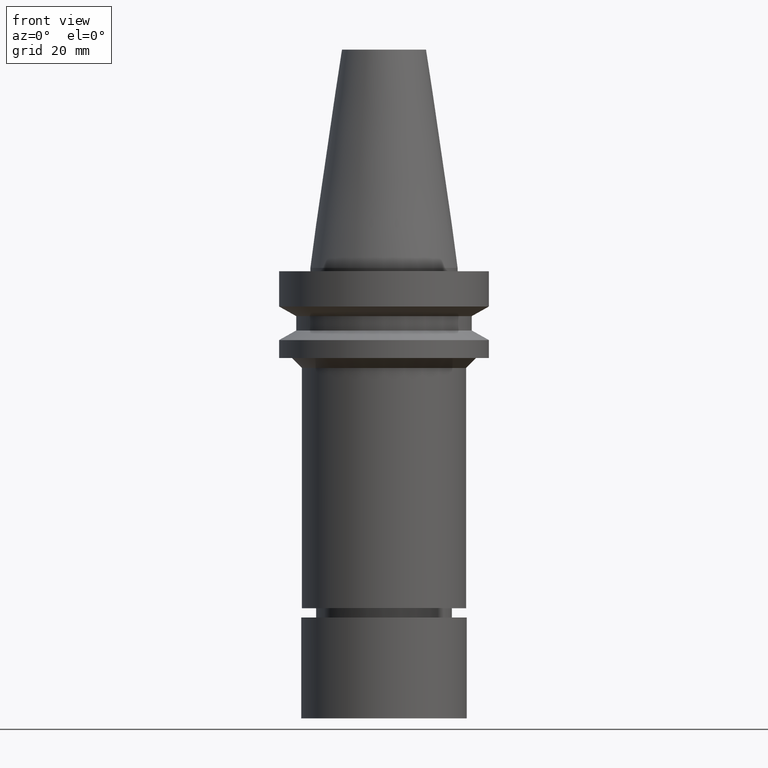
[diagram: clean part render]
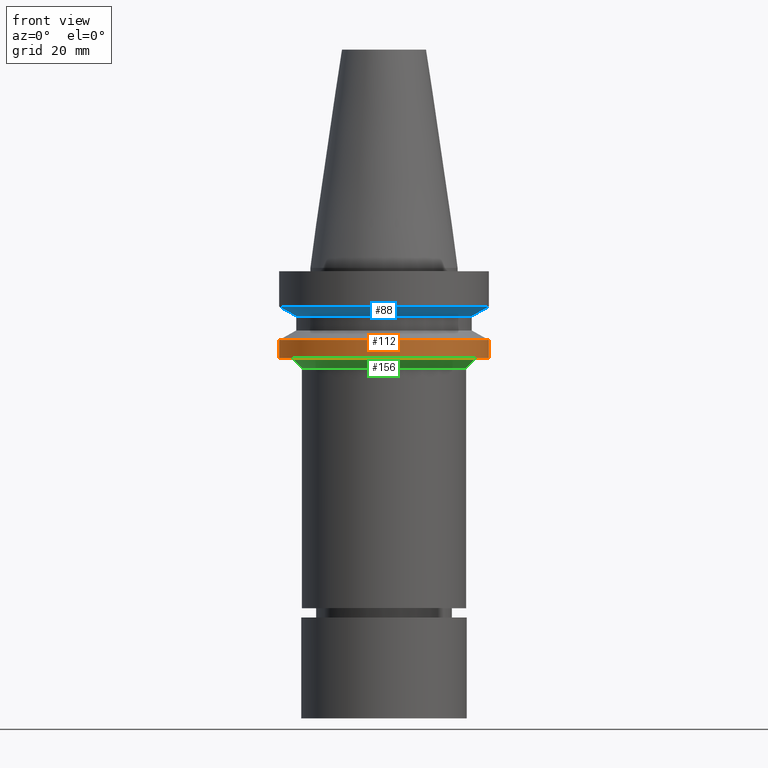
[diagram: same view with three faces highlighted in distinct colors, each labeled with its STEP entity id]
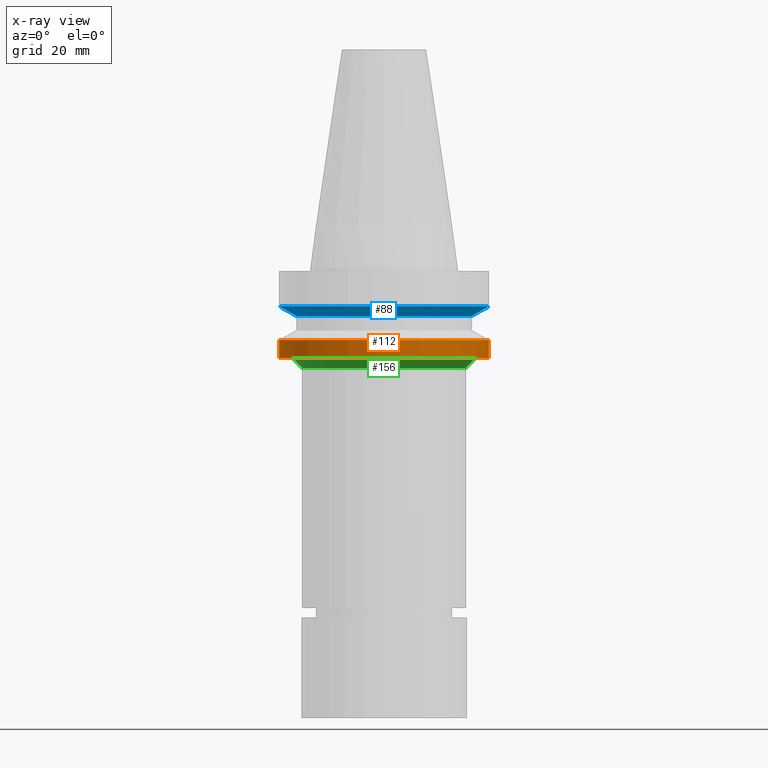
[diagram: x-ray of the same camera — body ghosted, the three highlighted faces saturated]
A machine part, front view with three faces highlighted in distinct colors.
The next image is the same camera in x-ray (body ghosted, the three faces saturated) — at least one of them is partly hidden behind the body in this view.
Their STEP definitions:

[orange] entity #112 — the highlighted cylindrical surface (bore or boss wall) has radius 31.5 mm, axis along (0, -0, -1).
#90=EDGE_CURVE('Unnamed[1]',#221,#221,#222,.T.);
#112=ADVANCED_FACE('Unnamed[1]',(#255,#256),#257,.T.);
#124=EDGE_CURVE('Unnamed[1]',#274,#274,#275,.T.);
#221=VERTEX_POINT('',#400);
#222=CIRCLE('',#401,31.5000000000006);
#255=FACE_BOUND('',#443,.T.);
#256=FACE_BOUND('',#444,.T.);
#257=CYLINDRICAL_SURFACE('',#445,31.5000000000005);
#274=VERTEX_POINT('',#467);
#275=CIRCLE('',#468,31.5000000000003);
#400=CARTESIAN_POINT('',(1.32473071268174E-015,31.5000000000007,-21.6344943473346));
#401=AXIS2_PLACEMENT_3D('',#599,#600,#601);
#443=EDGE_LOOP('',(#636));
#444=EDGE_LOOP('',(#637));
#445=AXIS2_PLACEMENT_3D('',#638,#639,#640);
#467=CARTESIAN_POINT('',(1.65328282719222E-015,31.5000000000004,-27.0001575694036));
#468=AXIS2_PLACEMENT_3D('',#658,#659,#660);
#599=CARTESIAN_POINT('',(1.32473071268174E-015,7.6377663973404E-014,-21.6344943473346));
#600=DIRECTION('',(6.12323399573677E-017,-8.9814939714193E-018,-1.0));
#601=DIRECTION('',(-4.27719483858603E-033,1.0,-8.9814939714193E-018));
#636=ORIENTED_EDGE('',*,*,#124,.F.);
#637=ORIENTED_EDGE('',*,*,#90,.T.);
#638=CARTESIAN_POINT('',(1.48900676993698E-015,7.63535681374632E-014,-24.3173259583691));
#639=DIRECTION('',(6.12323399573677E-017,-8.98149397141929E-018,-1.0));
#640=DIRECTION('',(-4.27719483858603E-033,1.0,-8.98149397141929E-018));
#658=CARTESIAN_POINT('',(1.65328282719222E-015,7.63294723015223E-014,-27.0001575694036));
#659=DIRECTION('',(6.12323399573677E-017,-8.98149397141932E-018,-1.0));
#660=DIRECTION('',(-4.27719483858603E-033,1.0,-8.98149397141932E-018));

[blue] entity #88 — the highlighted conical surface has half-angle 60 deg.
#88=ADVANCED_FACE('Unnamed[1]',(#217,#218),#219,.T.);
#151=EDGE_CURVE('Unnamed[1]',#316,#316,#317,.T.);
#153=EDGE_CURVE('Unnamed[1]',#319,#319,#320,.T.);
#217=FACE_BOUND('',#395,.T.);
#218=FACE_BOUND('',#396,.T.);
#219=CONICAL_SURFACE('',#397,28.9999999999998,1.04719755119657);
#316=VERTEX_POINT('',#520);
#317=CIRCLE('',#521,31.5000000000003);
#319=VERTEX_POINT('',#524);
#320=CIRCLE('',#525,26.4999999999994);
#395=EDGE_LOOP('',(#594));
#396=EDGE_LOOP('',(#595));
#397=AXIS2_PLACEMENT_3D('',#596,#597,#598);
#520=CARTESIAN_POINT('',(7.08182973902924E-016,31.5000000000004,-11.5655056526664));
#521=AXIS2_PLACEMENT_3D('',#705,#706,#707);
#524=CARTESIAN_POINT('',(8.8494551369045E-016,26.4999999999995,-14.4522569986152));
#525=AXIS2_PLACEMENT_3D('',#708,#709,#710);
#594=ORIENTED_EDGE('',*,*,#153,.F.);
#595=ORIENTED_EDGE('',*,*,#151,.T.);
#596=CARTESIAN_POINT('',(7.96564243796687E-016,7.64551348647582E-014,-13.0088813256408));
#597=DIRECTION('',(-6.12323399573677E-017,8.98149397141931E-018,1.0));
#598=DIRECTION('',(-4.27719483858603E-033,1.0,-8.9814939714193E-018));
#705=CARTESIAN_POINT('',(7.08182973902924E-016,7.64680985346635E-014,-11.5655056526664));
#706=DIRECTION('',(6.12323399573677E-017,-8.98149397141932E-018,-1.0));
#707=DIRECTION('',(-4.27719483858603E-033,1.0,-8.98149397141932E-018));
#708=CARTESIAN_POINT('',(8.8494551369045E-016,7.64421711948529E-014,-14.4522569986152));
#709=DIRECTION('',(6.12323399573677E-017,-8.98149397141931E-018,-1.0));
#710=DIRECTION('',(-4.27719483858603E-033,1.0,-8.98149397141931E-018));

[green] entity #156 — the highlighted conical surface has half-angle 45 deg.
#101=EDGE_CURVE('Unnamed[1]',#238,#238,#239,.T.);
#156=ADVANCED_FACE('Unnamed[1]',(#323,#324),#325,.T.);
#170=EDGE_CURVE('Unnamed[1]',#346,#346,#347,.T.);
#238=VERTEX_POINT('',#422);
#239=CIRCLE('',#423,24.7999999999997);
#323=FACE_BOUND('',#529,.T.);
#324=FACE_BOUND('',#530,.T.);
#325=CONICAL_SURFACE('',#531,26.3000000012197,0.785398163374259);
#346=VERTEX_POINT('',#557);
#347=CIRCLE('',#558,27.8000000024396);
#422=CARTESIAN_POINT('',(1.83697045278272E-015,24.7999999999998,-30.0000041491422));
#423=AXIS2_PLACEMENT_3D('',#617,#618,#619);
#529=EDGE_LOOP('',(#712));
#530=EDGE_LOOP('',(#713));
#531=AXIS2_PLACEMENT_3D('',#714,#715,#716);
#557=CARTESIAN_POINT('',(1.65327343275269E-015,27.8000000024397,-27.0000041465632));
#558=AXIS2_PLACEMENT_3D('',#740,#741,#742);
#617=CARTESIAN_POINT('',(1.83697045278272E-015,7.63025291975512E-014,-30.0000041491422));
#618=DIRECTION('',(6.12323399573676E-017,-8.9814939714193E-018,-1.0));
#619=DIRECTION('',(-4.27719483858603E-033,1.0,-8.9814939714193E-018));
#712=ORIENTED_EDGE('',*,*,#101,.F.);
#713=ORIENTED_EDGE('',*,*,#170,.T.);
#714=CARTESIAN_POINT('',(1.74512194276771E-015,7.63160014385199E-014,-28.5000041478527));
#715=DIRECTION('',(-6.12323399573677E-017,8.9814939714193E-018,1.0));
#716=DIRECTION('',(-4.27719483858603E-033,1.0,-8.9814939714193E-018));
#740=CARTESIAN_POINT('',(1.6532734327527E-015,7.63294736794887E-014,-27.0000041465632));
#741=DIRECTION('',(6.12323399573677E-017,-8.98149397141929E-018,-1.0));
#742=DIRECTION('',(-4.27719483858603E-033,1.0,-8.98149397141929E-018));